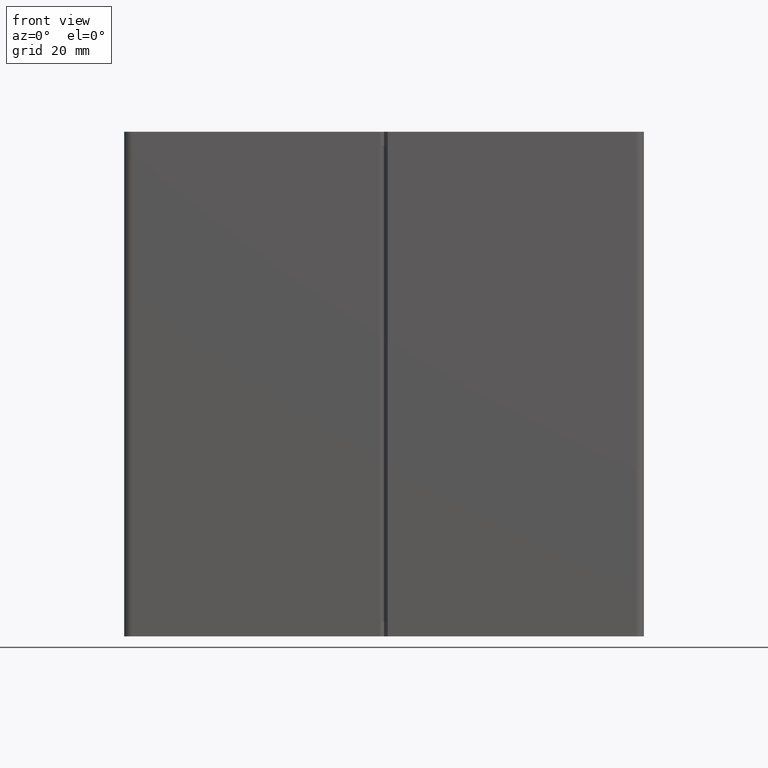
[diagram: clean part render]
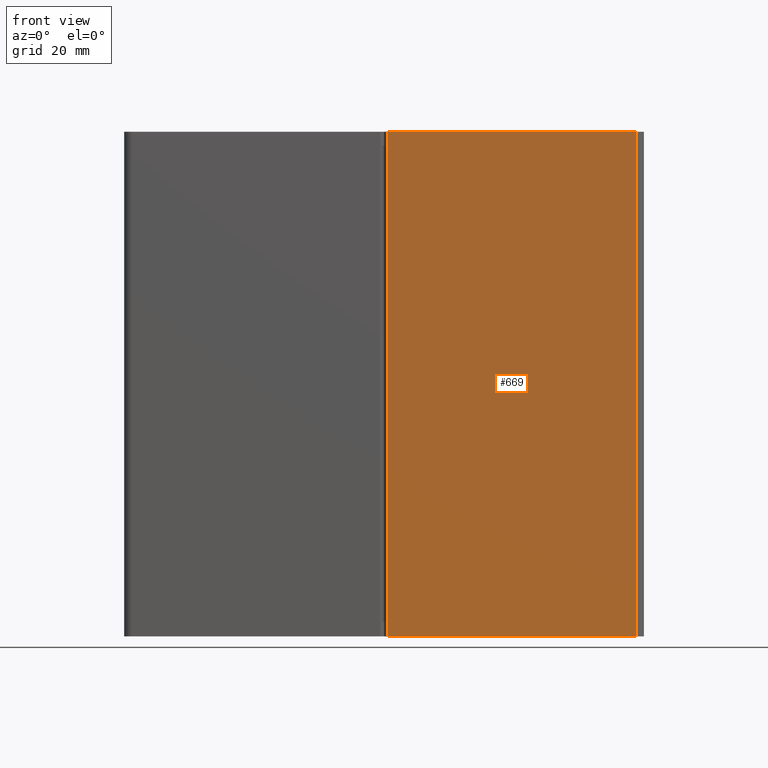
[diagram: same view with one face highlighted and labeled with its STEP entity id]
A machine part, front view. The second image highlights one B-rep face of the part: STEP entity #669.
In plain terms, the highlighted planar face has unit normal (0, -1, 0).
Its self-contained STEP definition (entity closure, byte-faithful):
#83=FACE_OUTER_BOUND('',#117,.T.);
#117=EDGE_LOOP('',(#595,#596,#597,#598));
#154=LINE('',#1059,#226);
#167=LINE('',#1091,#239);
#181=LINE('',#1123,#253);
#191=LINE('',#1142,#263);
#226=VECTOR('',#855,10.);
#239=VECTOR('',#880,10.);
#253=VECTOR('',#908,10.);
#263=VECTOR('',#936,10.);
#305=VERTEX_POINT('',#1056);
#306=VERTEX_POINT('',#1058);
#318=VERTEX_POINT('',#1088);
#319=VERTEX_POINT('',#1090);
#379=EDGE_CURVE('',#305,#306,#154,.T.);
#395=EDGE_CURVE('',#318,#319,#167,.T.);
#413=EDGE_CURVE('',#319,#305,#181,.T.);
#423=EDGE_CURVE('',#318,#306,#191,.T.);
#595=ORIENTED_EDGE('',*,*,#413,.F.);
#596=ORIENTED_EDGE('',*,*,#395,.F.);
#597=ORIENTED_EDGE('',*,*,#423,.T.);
#598=ORIENTED_EDGE('',*,*,#379,.F.);
#635=PLANE('',#757);
#669=ADVANCED_FACE('',(#83),#635,.T.);
#757=AXIS2_PLACEMENT_3D('',#1146,#942,#943);
#855=DIRECTION('',(-1.,0.,0.));
#880=DIRECTION('',(1.,0.,0.));
#908=DIRECTION('',(0.,0.,-1.));
#936=DIRECTION('',(0.,0.,-1.));
#942=DIRECTION('center_axis',(0.,-1.,0.));
#943=DIRECTION('ref_axis',(1.,0.,0.));
#1056=CARTESIAN_POINT('',(50.,-10.,0.));
#1058=CARTESIAN_POINT('',(0.75,-10.,0.));
#1059=CARTESIAN_POINT('',(51.5,-10.,0.));
#1088=CARTESIAN_POINT('',(0.75,-10.,100.));
#1090=CARTESIAN_POINT('',(50.,-10.,100.));
#1091=CARTESIAN_POINT('',(51.5,-10.,100.));
#1123=CARTESIAN_POINT('',(50.,-10.,0.));
#1142=CARTESIAN_POINT('',(0.749999999999997,-10.,50.));
#1146=CARTESIAN_POINT('Origin',(-51.5,-10.,0.));